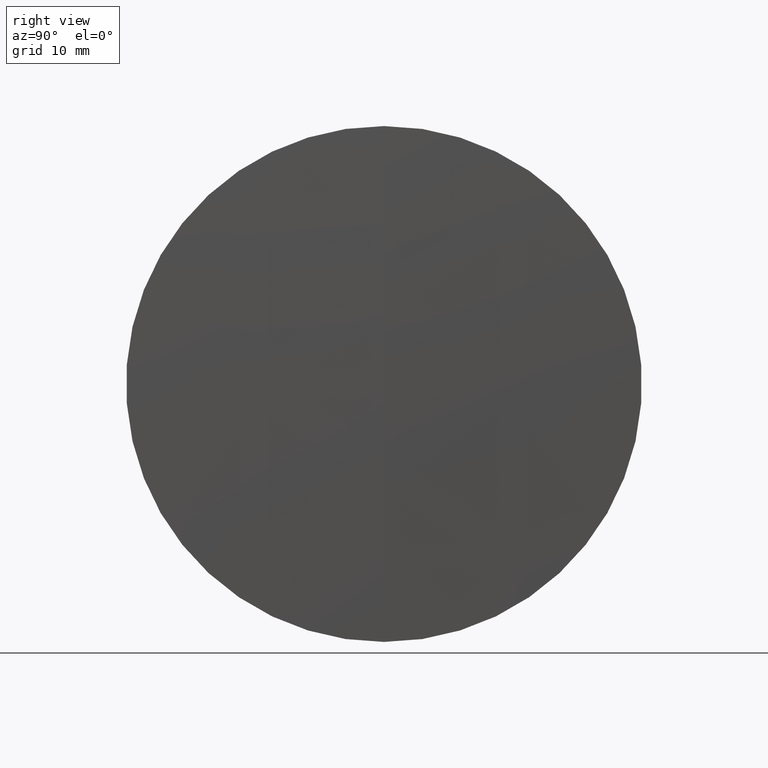
[diagram: clean part render]
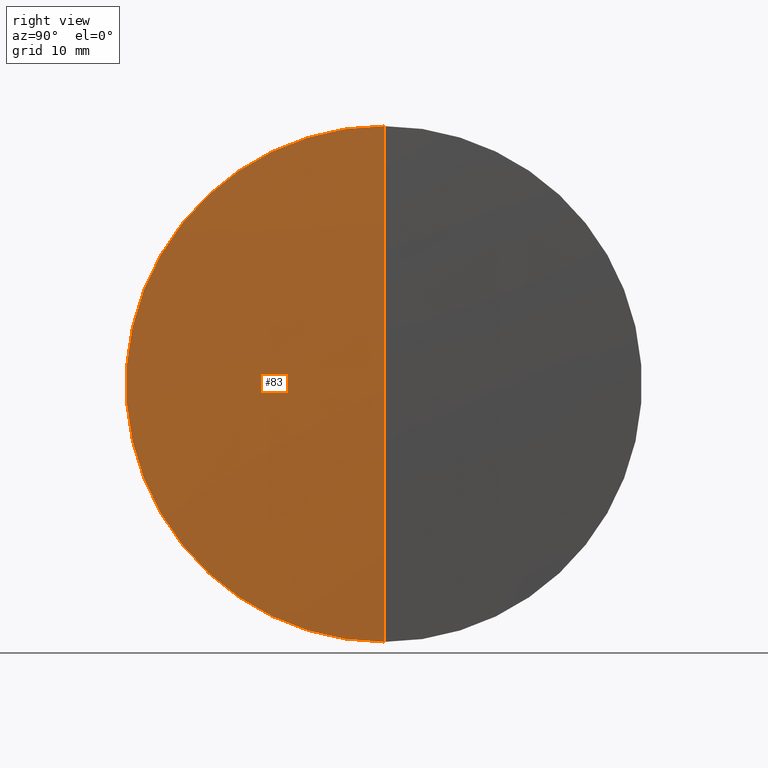
[diagram: same view with one face highlighted and labeled with its STEP entity id]
A machine part, right view. The second image highlights one B-rep face of the part: STEP entity #83.
In plain terms, the highlighted spherical surface has radius 840.697 mm.
Its self-contained STEP definition (entity closure, byte-faithful):
#30 = FACE_OUTER_BOUND ( 'NONE', #328, .T. ) ;
#34 = EDGE_CURVE ( 'NONE', #109, #108, #173, .T. ) ;
#42 = EDGE_CURVE ( 'NONE', #109, #92, #91, .T. ) ;
#51 = CARTESIAN_POINT ( 'NONE',  ( 297.4081471606919500, 0.0000000000000000000, 5.147784450513912500E-014 ) ) ;
#57 = AXIS2_PLACEMENT_3D ( 'NONE', #90, #262, #190 ) ;
#63 = AXIS2_PLACEMENT_3D ( 'NONE', #277, #73, #232 ) ;
#73 = DIRECTION ( 'NONE',  ( 0.0000000000000000000, -1.000000000000000000, 0.0000000000000000000 ) ) ;
#81 = CARTESIAN_POINT ( 'NONE',  ( 297.0363495728295200, 0.0000000000000000000, 0.0000000000000000000 ) ) ;
#83 = ADVANCED_FACE ( 'NONE', ( #30 ), #293, .T. ) ;
#89 = AXIS2_PLACEMENT_3D ( 'NONE', #256, #236, #182 ) ;
#90 = CARTESIAN_POINT ( 'NONE',  ( -543.2888528393081100, 0.0000000000000000000, 0.0000000000000000000 ) ) ;
#91 = CIRCLE ( 'NONE', #89, 840.6970000000000000 ) ;
#92 = VERTEX_POINT ( 'NONE', #245 ) ;
#99 = ORIENTED_EDGE ( 'NONE', *, *, #287, .F. ) ;
#108 = VERTEX_POINT ( 'NONE', #305 ) ;
#109 = VERTEX_POINT ( 'NONE', #51 ) ;
#173 = CIRCLE ( 'NONE', #63, 840.6970000000000000 ) ;
#178 = CIRCLE ( 'NONE', #194, 24.99999999999932500 ) ;
#182 = DIRECTION ( 'NONE',  ( 0.0000000000000000000, -1.224646799147353200E-016, 1.000000000000000000 ) ) ;
#190 = DIRECTION ( 'NONE',  ( 0.0000000000000000000, 0.0000000000000000000, 1.000000000000000000 ) ) ;
#194 = AXIS2_PLACEMENT_3D ( 'NONE', #81, #299, #254 ) ;
#232 = DIRECTION ( 'NONE',  ( 0.0000000000000000000, 0.0000000000000000000, -1.000000000000000000 ) ) ;
#236 = DIRECTION ( 'NONE',  ( -0.0000000000000000000, 1.000000000000000000, 1.224646799147353200E-016 ) ) ;
#245 = CARTESIAN_POINT ( 'NONE',  ( 297.0363495728295200, 3.061616997868316400E-015, -24.99999999999932500 ) ) ;
#254 = DIRECTION ( 'NONE',  ( 0.0000000000000000000, 0.0000000000000000000, 1.000000000000000000 ) ) ;
#256 = CARTESIAN_POINT ( 'NONE',  ( -543.2888528393081100, 0.0000000000000000000, 0.0000000000000000000 ) ) ;
#262 = DIRECTION ( 'NONE',  ( 0.0000000000000000000, 1.000000000000000000, 0.0000000000000000000 ) ) ;
#277 = CARTESIAN_POINT ( 'NONE',  ( -543.2888528393081100, 0.0000000000000000000, 0.0000000000000000000 ) ) ;
#287 = EDGE_CURVE ( 'NONE', #92, #108, #178, .T. ) ;
#293 = SPHERICAL_SURFACE ( 'NONE', #57, 840.6970000000000000 ) ;
#299 = DIRECTION ( 'NONE',  ( -1.000000000000000000, -0.0000000000000000000, -0.0000000000000000000 ) ) ;
#301 = ORIENTED_EDGE ( 'NONE', *, *, #42, .F. ) ;
#305 = CARTESIAN_POINT ( 'NONE',  ( 297.0363495728295200, 0.0000000000000000000, 24.99999999999932500 ) ) ;
#307 = ORIENTED_EDGE ( 'NONE', *, *, #34, .T. ) ;
#328 = EDGE_LOOP ( 'NONE', ( #301, #307, #99 ) ) ;